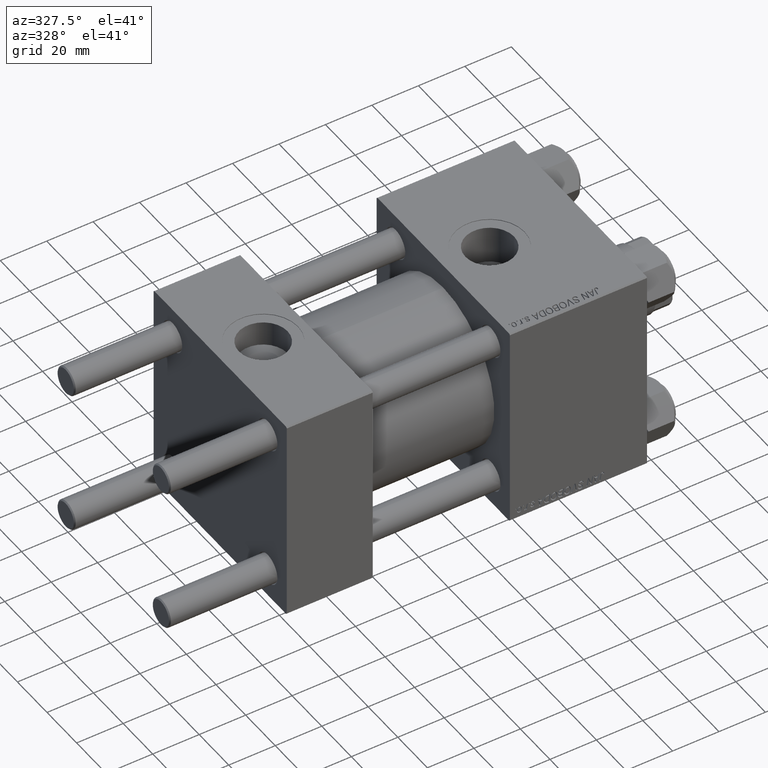
[diagram: clean part render]
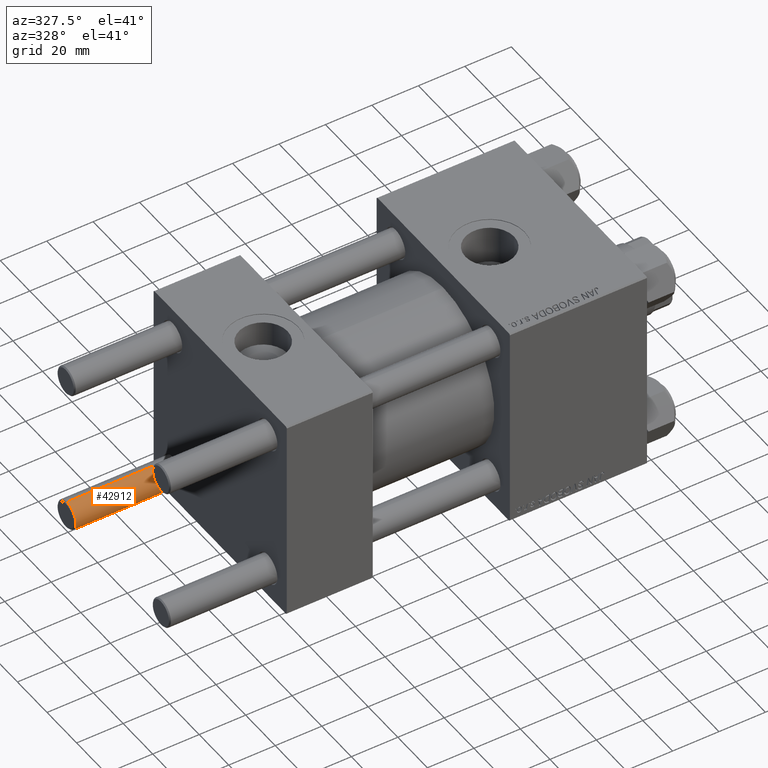
[diagram: same view with one face highlighted and labeled with its STEP entity id]
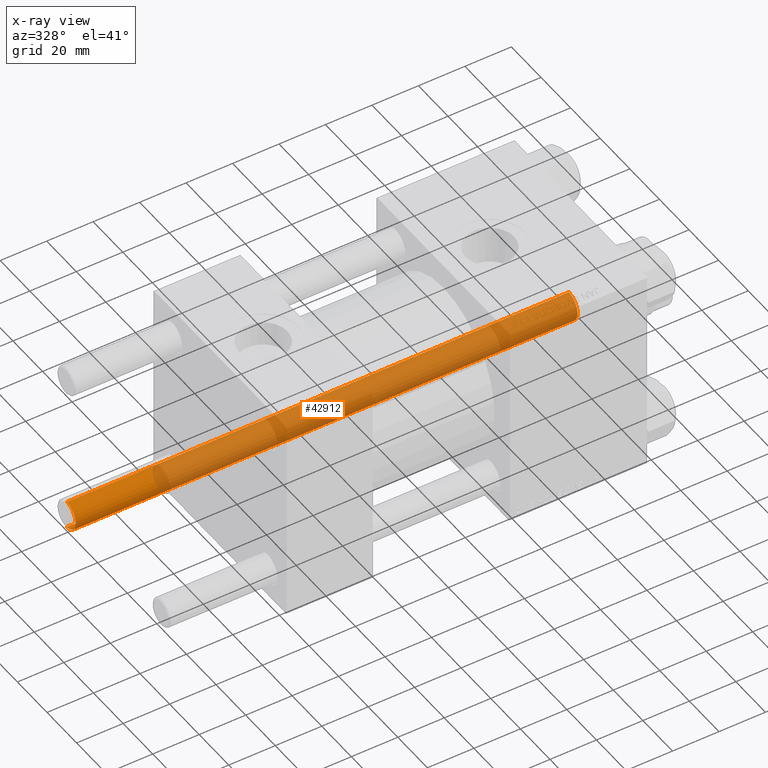
[diagram: x-ray of the same camera — body ghosted, the highlighted face saturated]
A machine part, auxiliary view. The second image highlights one B-rep face of the part: STEP entity #42912.
The next image is the same camera in x-ray: the body ghosted, the highlighted face saturated — about 83% of this face is hidden behind the body in this view.
In plain terms, the highlighted cylindrical surface (edge-blend (fillet) strip) has radius 6 mm, axis along (1, 0, -0).
Its self-contained STEP definition (entity closure, byte-faithful):
#55 = CARTESIAN_POINT ( 'NONE',  ( 0.000000000000000000, 0.000000000000000000, 217.0000000000000000 ) ) ;
#250 = EDGE_CURVE ( 'NONE', #40664, #18280, #38745, .T. ) ;
#1429 = VERTEX_POINT ( 'NONE', #18761 ) ;
#2623 = ORIENTED_EDGE ( 'NONE', *, *, #46043, .T. ) ;
#3366 = AXIS2_PLACEMENT_3D ( 'NONE', #24700, #25197, #36319 ) ;
#4303 = DIRECTION ( 'NONE',  ( -0.000000000000000000, -0.000000000000000000, -1.000000000000000000 ) ) ;
#6444 = VERTEX_POINT ( 'NONE', #22601 ) ;
#6586 = CIRCLE ( 'NONE', #3366, 6.000000000000000888 ) ;
#7499 = DIRECTION ( 'NONE',  ( 0.000000000000000000, 0.000000000000000000, -1.000000000000000000 ) ) ;
#8866 = AXIS2_PLACEMENT_3D ( 'NONE', #25941, #7499, #22917 ) ;
#11042 = ORIENTED_EDGE ( 'NONE', *, *, #49929, .F. ) ;
#15497 = CARTESIAN_POINT ( 'NONE',  ( -6.000000000000000888, 0.000000000000000000, 217.0000000000000000 ) ) ;
#15661 = LINE ( 'NONE', #18695, #48686 ) ;
#16553 = CARTESIAN_POINT ( 'NONE',  ( -6.000000000000000888, 0.000000000000000000, 216.4999999999999716 ) ) ;
#16822 = EDGE_CURVE ( 'NONE', #18280, #6444, #42031, .T. ) ;
#18280 = VERTEX_POINT ( 'NONE', #16553 ) ;
#18695 = CARTESIAN_POINT ( 'NONE',  ( 6.000000000000000888, 7.347880794884120722E-16, 217.0000000000000000 ) ) ;
#18761 = CARTESIAN_POINT ( 'NONE',  ( 6.000000000000000888, 7.347880794884120722E-16, 0.4999999999999449329 ) ) ;
#22601 = CARTESIAN_POINT ( 'NONE',  ( -6.000000000000000888, 0.000000000000000000, 0.4999999999999449329 ) ) ;
#22917 = DIRECTION ( 'NONE',  ( 1.000000000000000000, 0.000000000000000000, 0.000000000000000000 ) ) ;
#24700 = CARTESIAN_POINT ( 'NONE',  ( 0.000000000000000000, 0.000000000000000000, 0.4999999999999449329 ) ) ;
#25197 = DIRECTION ( 'NONE',  ( -0.000000000000000000, -0.000000000000000000, 1.000000000000000000 ) ) ;
#25941 = CARTESIAN_POINT ( 'NONE',  ( 0.000000000000000000, 0.000000000000000000, 216.4999999999999716 ) ) ;
#28427 = ORIENTED_EDGE ( 'NONE', *, *, #16822, .T. ) ;
#29562 = ORIENTED_EDGE ( 'NONE', *, *, #250, .T. ) ;
#30304 = VECTOR ( 'NONE', #30415, 1000.000000000000000 ) ;
#30415 = DIRECTION ( 'NONE',  ( -0.000000000000000000, -0.000000000000000000, -1.000000000000000000 ) ) ;
#34146 = FACE_OUTER_BOUND ( 'NONE', #49533, .T. ) ;
#34883 = DIRECTION ( 'NONE',  ( -1.000000000000000000, 0.000000000000000000, 0.000000000000000000 ) ) ;
#36319 = DIRECTION ( 'NONE',  ( 1.000000000000000000, 0.000000000000000000, 0.000000000000000000 ) ) ;
#36993 = CARTESIAN_POINT ( 'NONE',  ( 6.000000000000000888, 7.347880794884120722E-16, 216.4999999999999716 ) ) ;
#38745 = CIRCLE ( 'NONE', #8866, 6.000000000000000888 ) ;
#40664 = VERTEX_POINT ( 'NONE', #36993 ) ;
#42009 = AXIS2_PLACEMENT_3D ( 'NONE', #55, #42231, #34883 ) ;
#42031 = LINE ( 'NONE', #15497, #30304 ) ;
#42231 = DIRECTION ( 'NONE',  ( -0.000000000000000000, -0.000000000000000000, -1.000000000000000000 ) ) ;
#42912 = ADVANCED_FACE ( 'NONE', ( #34146 ), #45518, .T. ) ;
#45518 = CYLINDRICAL_SURFACE ( 'NONE', #42009, 6.000000000000000888 ) ;
#46043 = EDGE_CURVE ( 'NONE', #6444, #1429, #6586, .T. ) ;
#48686 = VECTOR ( 'NONE', #4303, 1000.000000000000000 ) ;
#49533 = EDGE_LOOP ( 'NONE', ( #11042, #29562, #28427, #2623 ) ) ;
#49929 = EDGE_CURVE ( 'NONE', #40664, #1429, #15661, .T. ) ;